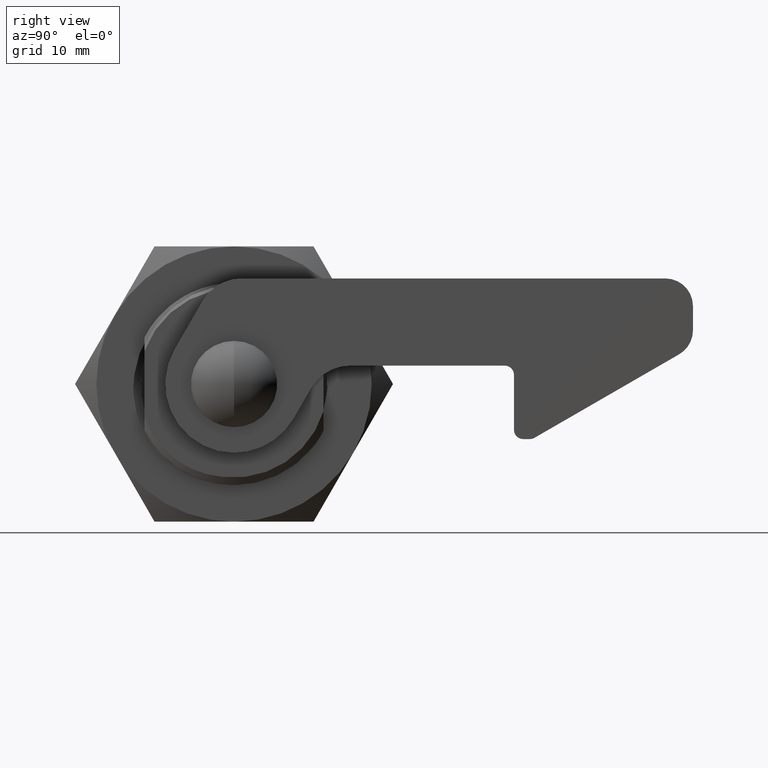
[diagram: clean part render]
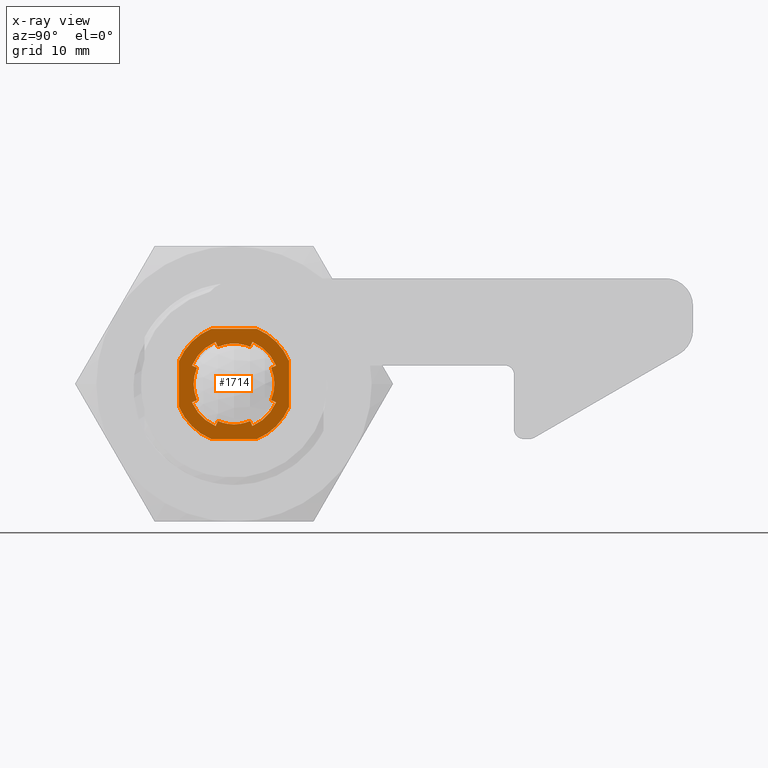
[diagram: x-ray — body ghosted, one internal face saturated and labeled with its STEP entity id]
A machine part, right view, then the same camera in x-ray: the body is ghosted and one INTERNAL B-rep face — a face not visible from any outside direction — is saturated and labeled: STEP entity #1714.
In plain terms, the highlighted planar face has unit normal (-1, 0, 0).
Its self-contained STEP definition (entity closure, byte-faithful):
#38 = LINE ( 'NONE', #10609, #16605 ) ;
#513 = VERTEX_POINT ( 'NONE', #21287 ) ;
#634 = LINE ( 'NONE', #9698, #28039 ) ;
#997 = VERTEX_POINT ( 'NONE', #22550 ) ;
#1047 = CARTESIAN_POINT ( 'NONE',  ( 13.35000000000838000, 2.500000000000000000, -6.000000000000000000 ) ) ;
#1060 = CARTESIAN_POINT ( 'NONE',  ( 13.35000000000836100, 0.05298757070345720000, 0.02240345837038985200 ) ) ;
#1284 = CIRCLE ( 'NONE', #28058, 5.000000000000000000 ) ;
#1349 = DIRECTION ( 'NONE',  ( 0.0000000000000000000, 1.776356839400250500E-015, 1.000000000000000000 ) ) ;
#1353 = CIRCLE ( 'NONE', #23115, 4.400000000009185900 ) ;
#1530 = CARTESIAN_POINT ( 'NONE',  ( 13.35000000000838000, -2.500000000000000000, -6.000000000000000000 ) ) ;
#1543 = DIRECTION ( 'NONE',  ( -0.0000000000000000000, -0.3894282637294113600, 0.9210567992304796700 ) ) ;
#1546 = DIRECTION ( 'NONE',  ( -1.000000000000000000, 0.0000000000000000000, 0.0000000000000000000 ) ) ;
#1714 = ADVANCED_FACE ( 'NONE', ( #24476, #18014 ), #3925, .T. ) ;
#1784 = VECTOR ( 'NONE', #1543, 999.9999999999998900 ) ;
#1924 = DIRECTION ( 'NONE',  ( 0.0000000000000000000, 0.0000000000000000000, 1.000000000000000000 ) ) ;
#2279 = LINE ( 'NONE', #15218, #18836 ) ;
#2336 = CIRCLE ( 'NONE', #10710, 6.500000000000000000 ) ;
#2405 = CARTESIAN_POINT ( 'NONE',  ( 13.35000000000836100, 0.0000000000000000000, -6.000000000000000000 ) ) ;
#2825 = EDGE_CURVE ( 'NONE', #7843, #19846, #18337, .T. ) ;
#2847 = DIRECTION ( 'NONE',  ( -1.000000000000000000, 0.0000000000000000000, 0.0000000000000000000 ) ) ;
#3058 = CARTESIAN_POINT ( 'NONE',  ( 13.35000000000838000, -4.582575694955840700, 2.000000000000000000 ) ) ;
#3566 = ORIENTED_EDGE ( 'NONE', *, *, #13650, .T. ) ;
#3680 = LINE ( 'NONE', #11645, #8707 ) ;
#3925 = PLANE ( 'NONE',  #4106 ) ;
#4106 = AXIS2_PLACEMENT_3D ( 'NONE', #19022, #25560, #12601 ) ;
#4276 = EDGE_CURVE ( 'NONE', #513, #9230, #22385, .T. ) ;
#4277 = EDGE_CURVE ( 'NONE', #20701, #27610, #5816, .T. ) ;
#4473 = DIRECTION ( 'NONE',  ( -0.0000000000000000000, 1.000000000000000000, -0.0000000000000000000 ) ) ;
#4547 = AXIS2_PLACEMENT_3D ( 'NONE', #20279, #7335, #22461 ) ;
#4700 = CARTESIAN_POINT ( 'NONE',  ( 13.35000000000838000, 0.0000000000000000000, -1.421085471520200100E-014 ) ) ;
#5059 = DIRECTION ( 'NONE',  ( 1.000000000000000000, -0.0000000000000000000, -0.0000000000000000000 ) ) ;
#5370 = EDGE_CURVE ( 'NONE', #9943, #13047, #23397, .T. ) ;
#5627 = VERTEX_POINT ( 'NONE', #1047 ) ;
#5673 = CARTESIAN_POINT ( 'NONE',  ( 13.35000000000838000, -2.000000000000000000, -4.582575694955849600 ) ) ;
#5686 = DIRECTION ( 'NONE',  ( 1.000000000000000000, -0.0000000000000000000, -0.0000000000000000000 ) ) ;
#5794 = CIRCLE ( 'NONE', #12343, 4.400000000009185900 ) ;
#5816 = LINE ( 'NONE', #23763, #10870 ) ;
#6245 = DIRECTION ( 'NONE',  ( 1.000000000000000000, -0.0000000000000000000, -0.0000000000000000000 ) ) ;
#6288 = LINE ( 'NONE', #18307, #22886 ) ;
#6327 = CARTESIAN_POINT ( 'NONE',  ( 13.35000000000838000, 0.0000000000000000000, -1.421085471520200100E-014 ) ) ;
#6591 = EDGE_CURVE ( 'NONE', #7843, #513, #5794, .T. ) ;
#6618 = EDGE_CURVE ( 'NONE', #21087, #26540, #38, .T. ) ;
#6863 = DIRECTION ( 'NONE',  ( 0.0000000000000000000, -8.881784197001252300E-016, 1.000000000000000000 ) ) ;
#6868 = ORIENTED_EDGE ( 'NONE', *, *, #20378, .T. ) ;
#6926 = VERTEX_POINT ( 'NONE', #19379 ) ;
#7009 = ORIENTED_EDGE ( 'NONE', *, *, #5370, .T. ) ;
#7284 = AXIS2_PLACEMENT_3D ( 'NONE', #6327, #21452, #8493 ) ;
#7315 = EDGE_CURVE ( 'NONE', #9225, #997, #26378, .T. ) ;
#7320 = VERTEX_POINT ( 'NONE', #18104 ) ;
#7335 = DIRECTION ( 'NONE',  ( -1.000000000000000000, 0.0000000000000000000, 0.0000000000000000000 ) ) ;
#7544 = DIRECTION ( 'NONE',  ( -0.0000000000000000000, -0.0000000000000000000, 1.000000000000000000 ) ) ;
#7783 = CARTESIAN_POINT ( 'NONE',  ( 13.35000000000838000, -2.000000000000000000, 4.582575694955819400 ) ) ;
#7843 = VERTEX_POINT ( 'NONE', #22967 ) ;
#7866 = CARTESIAN_POINT ( 'NONE',  ( 13.35000000000836100, 1.766325464533079900, 4.029900042609350300 ) ) ;
#8066 = CIRCLE ( 'NONE', #9266, 5.000000000000000000 ) ;
#8467 = ORIENTED_EDGE ( 'NONE', *, *, #23663, .F. ) ;
#8493 = DIRECTION ( 'NONE',  ( 0.0000000000000000000, 0.0000000000000000000, 1.000000000000000000 ) ) ;
#8512 = ORIENTED_EDGE ( 'NONE', *, *, #20211, .F. ) ;
#8633 = AXIS2_PLACEMENT_3D ( 'NONE', #18619, #5686, #20796 ) ;
#8707 = VECTOR ( 'NONE', #26788, 1000.000000000000000 ) ;
#8747 = LINE ( 'NONE', #1060, #20272 ) ;
#8889 = ORIENTED_EDGE ( 'NONE', *, *, #8906, .T. ) ;
#8906 = EDGE_CURVE ( 'NONE', #14766, #20701, #8066, .T. ) ;
#8923 = VERTEX_POINT ( 'NONE', #24093 ) ;
#8935 = EDGE_CURVE ( 'NONE', #5627, #21111, #2336, .T. ) ;
#9050 = LINE ( 'NONE', #26781, #19194 ) ;
#9079 = VECTOR ( 'NONE', #4473, 1000.000000000000000 ) ;
#9225 = VERTEX_POINT ( 'NONE', #11499 ) ;
#9230 = VERTEX_POINT ( 'NONE', #7866 ) ;
#9266 = AXIS2_PLACEMENT_3D ( 'NONE', #4700, #19803, #6863 ) ;
#9464 = EDGE_CURVE ( 'NONE', #19846, #21087, #22622, .T. ) ;
#9558 = AXIS2_PLACEMENT_3D ( 'NONE', #15769, #2847, #17935 ) ;
#9698 = CARTESIAN_POINT ( 'NONE',  ( 13.35000000000836100, -0.05298757070340829500, 0.02240345837037014900 ) ) ;
#9943 = VERTEX_POINT ( 'NONE', #23933 ) ;
#10170 = VERTEX_POINT ( 'NONE', #21982 ) ;
#10413 = EDGE_CURVE ( 'NONE', #21471, #13330, #634, .T. ) ;
#10418 = CARTESIAN_POINT ( 'NONE',  ( 13.35000000000836100, 0.0000000000000000000, 6.000000000000000000 ) ) ;
#10594 = CARTESIAN_POINT ( 'NONE',  ( 13.35000000000838000, 2.000000000000000000, 4.582575694955819400 ) ) ;
#10609 = CARTESIAN_POINT ( 'NONE',  ( 13.35000000000836100, 0.02240345837029735300, 0.05298757070337939400 ) ) ;
#10682 = CARTESIAN_POINT ( 'NONE',  ( 13.35000000000864200, 0.0000000000000000000, 0.0000000000000000000 ) ) ;
#10709 = CIRCLE ( 'NONE', #8633, 6.500000000000000000 ) ;
#10710 = AXIS2_PLACEMENT_3D ( 'NONE', #11205, #26358, #13385 ) ;
#10727 = CIRCLE ( 'NONE', #18165, 4.400000000009185900 ) ;
#10796 = CARTESIAN_POINT ( 'NONE',  ( 13.35000000000864200, 0.0000000000000000000, 0.0000000000000000000 ) ) ;
#10870 = VECTOR ( 'NONE', #21573, 1000.000000000000000 ) ;
#10893 = VERTEX_POINT ( 'NONE', #25211 ) ;
#11154 = CARTESIAN_POINT ( 'NONE',  ( 13.35000000000838000, 4.582575694955840700, -2.000000000000000000 ) ) ;
#11205 = CARTESIAN_POINT ( 'NONE',  ( 13.35000000000838000, 0.0000000000000000000, -1.421085471520200100E-014 ) ) ;
#11499 = CARTESIAN_POINT ( 'NONE',  ( 13.35000000000864200, 1.766325464533114800, -4.029900042609335200 ) ) ;
#11645 = CARTESIAN_POINT ( 'NONE',  ( 13.35000000000836100, -6.000000000000000000, 4.263256414560599900E-014 ) ) ;
#11896 = VECTOR ( 'NONE', #22616, 1000.000000000000100 ) ;
#12085 = ORIENTED_EDGE ( 'NONE', *, *, #9464, .T. ) ;
#12329 = ORIENTED_EDGE ( 'NONE', *, *, #7315, .F. ) ;
#12343 = AXIS2_PLACEMENT_3D ( 'NONE', #12781, #27934, #14953 ) ;
#12401 = VERTEX_POINT ( 'NONE', #14020 ) ;
#12586 = DIRECTION ( 'NONE',  ( -0.0000000000000000000, -1.000000000000000000, -0.0000000000000000000 ) ) ;
#12601 = DIRECTION ( 'NONE',  ( 0.0000000000000000000, 0.0000000000000000000, 1.000000000000000000 ) ) ;
#12769 = EDGE_CURVE ( 'NONE', #8923, #27610, #10727, .T. ) ;
#12781 = CARTESIAN_POINT ( 'NONE',  ( 13.35000000000864200, 0.0000000000000000000, 0.0000000000000000000 ) ) ;
#12855 = DIRECTION ( 'NONE',  ( 0.0000000000000000000, 0.0000000000000000000, 1.000000000000000000 ) ) ;
#12975 = DIRECTION ( 'NONE',  ( 0.0000000000000000000, 0.0000000000000000000, 1.000000000000000000 ) ) ;
#13047 = VERTEX_POINT ( 'NONE', #16920 ) ;
#13127 = CIRCLE ( 'NONE', #13702, 5.000000000000000000 ) ;
#13203 = ORIENTED_EDGE ( 'NONE', *, *, #23662, .T. ) ;
#13306 = ORIENTED_EDGE ( 'NONE', *, *, #8935, .F. ) ;
#13330 = VERTEX_POINT ( 'NONE', #19454 ) ;
#13385 = DIRECTION ( 'NONE',  ( 0.0000000000000000000, -1.776356839400250500E-015, 1.000000000000000000 ) ) ;
#13430 = EDGE_LOOP ( 'NONE', ( #17298, #13733, #7009, #6868, #19164, #15639, #12329, #20329, #8889, #16749, #20016, #3566, #13203, #25501, #18120, #20861, #16336, #12085 ) ) ;
#13650 = EDGE_CURVE ( 'NONE', #8923, #17722, #2279, .T. ) ;
#13702 = AXIS2_PLACEMENT_3D ( 'NONE', #27836, #14857, #1924 ) ;
#13714 = CARTESIAN_POINT ( 'NONE',  ( 13.35000000000838000, 6.000000000000000000, -2.500000000000000000 ) ) ;
#13733 = ORIENTED_EDGE ( 'NONE', *, *, #16909, .F. ) ;
#13821 = CIRCLE ( 'NONE', #16598, 6.500000000000000000 ) ;
#14020 = CARTESIAN_POINT ( 'NONE',  ( 13.35000000000838000, -2.500000000000000000, 6.000000000000000000 ) ) ;
#14285 = DIRECTION ( 'NONE',  ( 1.000000000000000000, -0.0000000000000000000, -0.0000000000000000000 ) ) ;
#14355 = EDGE_CURVE ( 'NONE', #10893, #10170, #3680, .T. ) ;
#14482 = CARTESIAN_POINT ( 'NONE',  ( 13.35000000000836100, -0.05298757070334580300, -0.02240345837025904700 ) ) ;
#14485 = CARTESIAN_POINT ( 'NONE',  ( 13.35000000000864200, 0.0000000000000000000, 0.0000000000000000000 ) ) ;
#14766 = VERTEX_POINT ( 'NONE', #24985 ) ;
#14857 = DIRECTION ( 'NONE',  ( 1.000000000000000000, -0.0000000000000000000, -0.0000000000000000000 ) ) ;
#14953 = DIRECTION ( 'NONE',  ( 0.0000000000000000000, 0.0000000000000000000, 1.000000000000000000 ) ) ;
#14972 = VERTEX_POINT ( 'NONE', #1530 ) ;
#15218 = CARTESIAN_POINT ( 'NONE',  ( 13.35000000000836100, -0.02240345837029904900, 0.05298757070338340500 ) ) ;
#15639 = ORIENTED_EDGE ( 'NONE', *, *, #25093, .F. ) ;
#15769 = CARTESIAN_POINT ( 'NONE',  ( 13.35000000000864200, 0.0000000000000000000, 0.0000000000000000000 ) ) ;
#16164 = DIRECTION ( 'NONE',  ( -0.0000000000000000000, 0.3894282637293873800, -0.9210567992304897800 ) ) ;
#16336 = ORIENTED_EDGE ( 'NONE', *, *, #2825, .T. ) ;
#16598 = AXIS2_PLACEMENT_3D ( 'NONE', #19190, #6245, #21362 ) ;
#16605 = VECTOR ( 'NONE', #25740, 1000.000000000000000 ) ;
#16648 = DIRECTION ( 'NONE',  ( 0.0000000000000000000, 0.0000000000000000000, 1.000000000000000000 ) ) ;
#16749 = ORIENTED_EDGE ( 'NONE', *, *, #4277, .T. ) ;
#16819 = VERTEX_POINT ( 'NONE', #10594 ) ;
#16909 = EDGE_CURVE ( 'NONE', #9943, #26540, #1353, .T. ) ;
#16920 = CARTESIAN_POINT ( 'NONE',  ( 13.35000000000838000, -4.582575694955849600, -1.999999999999899900 ) ) ;
#16972 = CARTESIAN_POINT ( 'NONE',  ( 13.35000000000836100, -4.029900042609350300, 1.766325464533085000 ) ) ;
#17117 = ORIENTED_EDGE ( 'NONE', *, *, #18733, .F. ) ;
#17125 = AXIS2_PLACEMENT_3D ( 'NONE', #17993, #5059, #20167 ) ;
#17298 = ORIENTED_EDGE ( 'NONE', *, *, #6618, .T. ) ;
#17396 = DIRECTION ( 'NONE',  ( -0.0000000000000000000, 0.9210567992304830000, 0.3894282637294034800 ) ) ;
#17722 = VERTEX_POINT ( 'NONE', #20323 ) ;
#17824 = EDGE_CURVE ( 'NONE', #9225, #14766, #8747, .T. ) ;
#17935 = DIRECTION ( 'NONE',  ( 0.0000000000000000000, 0.0000000000000000000, 1.000000000000000000 ) ) ;
#17993 = CARTESIAN_POINT ( 'NONE',  ( 13.35000000000838000, 0.0000000000000000000, -1.421085471520200100E-014 ) ) ;
#18014 = FACE_OUTER_BOUND ( 'NONE', #20478, .T. ) ;
#18104 = CARTESIAN_POINT ( 'NONE',  ( 13.35000000000838000, 2.500000000000000000, 6.000000000000000000 ) ) ;
#18120 = ORIENTED_EDGE ( 'NONE', *, *, #4276, .F. ) ;
#18165 = AXIS2_PLACEMENT_3D ( 'NONE', #14485, #1546, #16648 ) ;
#18307 = CARTESIAN_POINT ( 'NONE',  ( 13.35000000000836100, 6.000000000000000000, 4.263256414560599900E-014 ) ) ;
#18337 = LINE ( 'NONE', #14482, #1784 ) ;
#18619 = CARTESIAN_POINT ( 'NONE',  ( 13.35000000000838000, 0.0000000000000000000, -1.421085471520200100E-014 ) ) ;
#18733 = EDGE_CURVE ( 'NONE', #14972, #5627, #26365, .T. ) ;
#18836 = VECTOR ( 'NONE', #17396, 1000.000000000000000 ) ;
#18877 = VECTOR ( 'NONE', #12586, 1000.000000000000000 ) ;
#19022 = CARTESIAN_POINT ( 'NONE',  ( 13.35000000000836100, 0.0000000000000000000, 4.263256414560599900E-014 ) ) ;
#19164 = ORIENTED_EDGE ( 'NONE', *, *, #10413, .T. ) ;
#19190 = CARTESIAN_POINT ( 'NONE',  ( 13.35000000000838000, 0.0000000000000000000, -1.421085471520200100E-014 ) ) ;
#19194 = VECTOR ( 'NONE', #22499, 999.9999999999998900 ) ;
#19379 = CARTESIAN_POINT ( 'NONE',  ( 13.35000000000838000, 6.000000000000000000, 2.500000000000000000 ) ) ;
#19423 = EDGE_CURVE ( 'NONE', #10170, #14972, #23642, .T. ) ;
#19454 = CARTESIAN_POINT ( 'NONE',  ( 13.35000000000836100, -1.766325464533129900, -4.029900042609330800 ) ) ;
#19803 = DIRECTION ( 'NONE',  ( 1.000000000000000000, -0.0000000000000000000, -0.0000000000000000000 ) ) ;
#19846 = VERTEX_POINT ( 'NONE', #7783 ) ;
#20016 = ORIENTED_EDGE ( 'NONE', *, *, #12769, .F. ) ;
#20167 = DIRECTION ( 'NONE',  ( 0.0000000000000000000, 0.0000000000000000000, 1.000000000000000000 ) ) ;
#20211 = EDGE_CURVE ( 'NONE', #7320, #12401, #24673, .T. ) ;
#20272 = VECTOR ( 'NONE', #16164, 1000.000000000000000 ) ;
#20279 = CARTESIAN_POINT ( 'NONE',  ( 13.35000000000864200, 0.0000000000000000000, 0.0000000000000000000 ) ) ;
#20323 = CARTESIAN_POINT ( 'NONE',  ( 13.35000000000838000, 4.582575694955840700, 2.000000000000000000 ) ) ;
#20329 = ORIENTED_EDGE ( 'NONE', *, *, #17824, .T. ) ;
#20378 = EDGE_CURVE ( 'NONE', #13047, #21471, #13127, .T. ) ;
#20380 = EDGE_CURVE ( 'NONE', #6926, #7320, #13821, .T. ) ;
#20478 = EDGE_LOOP ( 'NONE', ( #8512, #21779, #24062, #13306, #17117, #24457, #24539, #8467 ) ) ;
#20701 = VERTEX_POINT ( 'NONE', #11154 ) ;
#20796 = DIRECTION ( 'NONE',  ( 0.0000000000000000000, 0.0000000000000000000, 1.000000000000000000 ) ) ;
#20861 = ORIENTED_EDGE ( 'NONE', *, *, #6591, .F. ) ;
#21073 = EDGE_CURVE ( 'NONE', #16819, #9230, #9050, .T. ) ;
#21087 = VERTEX_POINT ( 'NONE', #3058 ) ;
#21111 = VERTEX_POINT ( 'NONE', #13714 ) ;
#21287 = CARTESIAN_POINT ( 'NONE',  ( 13.35000000000864200, 0.0000000000000000000, 4.400000000009185900 ) ) ;
#21362 = DIRECTION ( 'NONE',  ( 0.0000000000000000000, 8.881784197001252300E-016, 1.000000000000000000 ) ) ;
#21452 = DIRECTION ( 'NONE',  ( 1.000000000000000000, -0.0000000000000000000, -0.0000000000000000000 ) ) ;
#21471 = VERTEX_POINT ( 'NONE', #5673 ) ;
#21573 = DIRECTION ( 'NONE',  ( -0.0000000000000000000, -0.9210567992304830000, 0.3894282637294034800 ) ) ;
#21779 = ORIENTED_EDGE ( 'NONE', *, *, #20380, .F. ) ;
#21982 = CARTESIAN_POINT ( 'NONE',  ( 13.35000000000838000, -6.000000000000000000, -2.500000000000000000 ) ) ;
#22385 = CIRCLE ( 'NONE', #26227, 4.400000000009185900 ) ;
#22461 = DIRECTION ( 'NONE',  ( 0.0000000000000000000, 0.0000000000000000000, 1.000000000000000000 ) ) ;
#22499 = DIRECTION ( 'NONE',  ( -0.0000000000000000000, -0.3894282637294209100, -0.9210567992304756800 ) ) ;
#22550 = CARTESIAN_POINT ( 'NONE',  ( 13.35000000000864200, 5.392321380813590300E-016, -4.400000000009185900 ) ) ;
#22557 = CIRCLE ( 'NONE', #9558, 4.400000000009185900 ) ;
#22616 = DIRECTION ( 'NONE',  ( -0.0000000000000000000, -0.9210567992304846700, -0.3894282637293993200 ) ) ;
#22622 = CIRCLE ( 'NONE', #7284, 5.000000000000000000 ) ;
#22654 = DIRECTION ( 'NONE',  ( -0.0000000000000000000, 0.3894282637294018700, 0.9210567992304836700 ) ) ;
#22886 = VECTOR ( 'NONE', #7544, 1000.000000000000000 ) ;
#22967 = CARTESIAN_POINT ( 'NONE',  ( 13.35000000000864200, -1.766325464533079900, 4.029900042609350300 ) ) ;
#23115 = AXIS2_PLACEMENT_3D ( 'NONE', #10682, #25822, #12855 ) ;
#23397 = LINE ( 'NONE', #24809, #11896 ) ;
#23642 = CIRCLE ( 'NONE', #17125, 6.500000000000000000 ) ;
#23662 = EDGE_CURVE ( 'NONE', #17722, #16819, #1284, .T. ) ;
#23663 = EDGE_CURVE ( 'NONE', #12401, #10893, #10709, .T. ) ;
#23763 = CARTESIAN_POINT ( 'NONE',  ( 13.35000000000836100, -0.02240345837034205000, -0.05298757070339980100 ) ) ;
#23933 = CARTESIAN_POINT ( 'NONE',  ( 13.35000000000864200, -4.029900042609379600, -1.766325464533014900 ) ) ;
#24062 = ORIENTED_EDGE ( 'NONE', *, *, #25649, .F. ) ;
#24093 = CARTESIAN_POINT ( 'NONE',  ( 13.35000000000864200, 4.029900042609345000, 1.766325464533089900 ) ) ;
#24457 = ORIENTED_EDGE ( 'NONE', *, *, #19423, .F. ) ;
#24476 = FACE_BOUND ( 'NONE', #13430, .T. ) ;
#24539 = ORIENTED_EDGE ( 'NONE', *, *, #14355, .F. ) ;
#24673 = LINE ( 'NONE', #10418, #18877 ) ;
#24809 = CARTESIAN_POINT ( 'NONE',  ( 13.35000000000836100, 0.02240345837030524900, -0.05298757070331340500 ) ) ;
#24985 = CARTESIAN_POINT ( 'NONE',  ( 13.35000000000838000, 2.000000000000000000, -4.582575694955790100 ) ) ;
#25093 = EDGE_CURVE ( 'NONE', #997, #13330, #22557, .T. ) ;
#25211 = CARTESIAN_POINT ( 'NONE',  ( 13.35000000000838000, -6.000000000000000000, 2.500000000000000000 ) ) ;
#25501 = ORIENTED_EDGE ( 'NONE', *, *, #21073, .T. ) ;
#25560 = DIRECTION ( 'NONE',  ( -1.000000000000000000, 0.0000000000000000000, 0.0000000000000000000 ) ) ;
#25649 = EDGE_CURVE ( 'NONE', #21111, #6926, #6288, .T. ) ;
#25740 = DIRECTION ( 'NONE',  ( -0.0000000000000000000, 0.9210567992304830000, -0.3894282637294034800 ) ) ;
#25822 = DIRECTION ( 'NONE',  ( -1.000000000000000000, 0.0000000000000000000, 0.0000000000000000000 ) ) ;
#25936 = DIRECTION ( 'NONE',  ( -1.000000000000000000, 0.0000000000000000000, 0.0000000000000000000 ) ) ;
#26061 = CARTESIAN_POINT ( 'NONE',  ( 13.35000000000836100, 4.029900042609330800, -1.766325464533119900 ) ) ;
#26227 = AXIS2_PLACEMENT_3D ( 'NONE', #10796, #25936, #12975 ) ;
#26358 = DIRECTION ( 'NONE',  ( 1.000000000000000000, -0.0000000000000000000, -0.0000000000000000000 ) ) ;
#26365 = LINE ( 'NONE', #2405, #9079 ) ;
#26378 = CIRCLE ( 'NONE', #4547, 4.400000000009185900 ) ;
#26540 = VERTEX_POINT ( 'NONE', #16972 ) ;
#26781 = CARTESIAN_POINT ( 'NONE',  ( 13.35000000000836100, 0.05298757070330399600, -0.02240345837024205000 ) ) ;
#26788 = DIRECTION ( 'NONE',  ( -0.0000000000000000000, -0.0000000000000000000, -1.000000000000000000 ) ) ;
#27261 = CARTESIAN_POINT ( 'NONE',  ( 13.35000000000838000, 0.0000000000000000000, -1.421085471520200100E-014 ) ) ;
#27610 = VERTEX_POINT ( 'NONE', #26061 ) ;
#27836 = CARTESIAN_POINT ( 'NONE',  ( 13.35000000000838000, 0.0000000000000000000, -1.421085471520200100E-014 ) ) ;
#27934 = DIRECTION ( 'NONE',  ( -1.000000000000000000, 0.0000000000000000000, 0.0000000000000000000 ) ) ;
#28039 = VECTOR ( 'NONE', #22654, 999.9999999999998900 ) ;
#28058 = AXIS2_PLACEMENT_3D ( 'NONE', #27261, #14285, #1349 ) ;